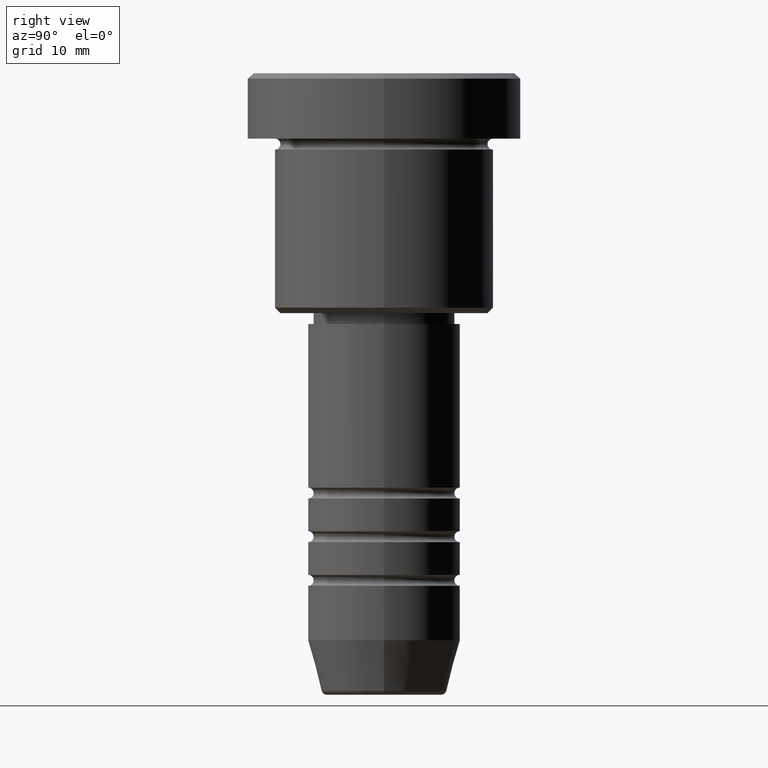
[diagram: clean part render]
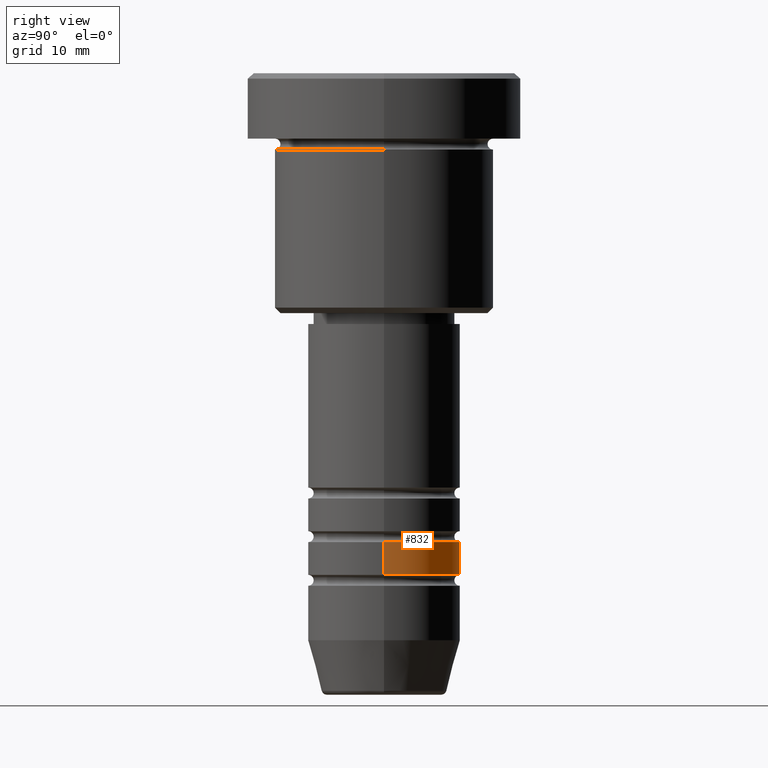
[diagram: same view with one face highlighted and labeled with its STEP entity id]
A machine part, right view. The second image highlights one B-rep face of the part: STEP entity #832.
In plain terms, the highlighted cylindrical surface (partial cylindrical patch) has radius 7 mm, axis along (-0, -0, 1).
Its self-contained STEP definition (entity closure, byte-faithful):
#58 = DIRECTION ( 'NONE',  ( -0.000000000000000000, -0.000000000000000000, 1.000000000000000000 ) ) ;
#67 = CARTESIAN_POINT ( 'NONE',  ( -7.000000000000000000, 8.572527594031473190E-16, -42.99999999999989342 ) ) ;
#105 = EDGE_CURVE ( 'NONE', #943, #615, #325, .T. ) ;
#121 = EDGE_LOOP ( 'NONE', ( #228, #783, #512, #343 ) ) ;
#131 = DIRECTION ( 'NONE',  ( -0.000000000000000000, -0.000000000000000000, 1.000000000000000000 ) ) ;
#193 = VECTOR ( 'NONE', #628, 1000.000000000000000 ) ;
#215 = CIRCLE ( 'NONE', #468, 7.000000000000000000 ) ;
#228 = ORIENTED_EDGE ( 'NONE', *, *, #1126, .T. ) ;
#240 = EDGE_CURVE ( 'NONE', #503, #615, #215, .T. ) ;
#271 = AXIS2_PLACEMENT_3D ( 'NONE', #895, #58, #1146 ) ;
#279 = CARTESIAN_POINT ( 'NONE',  ( -7.000000000000000888, 8.572527594031474176E-16, -45.99999999999988631 ) ) ;
#301 = DIRECTION ( 'NONE',  ( 1.000000000000000000, 0.000000000000000000, 0.000000000000000000 ) ) ;
#324 = DIRECTION ( 'NONE',  ( -0.000000000000000000, -0.000000000000000000, 1.000000000000000000 ) ) ;
#325 = LINE ( 'NONE', #801, #193 ) ;
#332 = CARTESIAN_POINT ( 'NONE',  ( 7.000000000000000888, 0.000000000000000000, 0.000000000000000000 ) ) ;
#343 = ORIENTED_EDGE ( 'NONE', *, *, #836, .F. ) ;
#421 = FACE_OUTER_BOUND ( 'NONE', #121, .T. ) ;
#424 = LINE ( 'NONE', #332, #1084 ) ;
#468 = AXIS2_PLACEMENT_3D ( 'NONE', #773, #495, #693 ) ;
#495 = DIRECTION ( 'NONE',  ( -0.000000000000000000, -0.000000000000000000, 1.000000000000000000 ) ) ;
#503 = VERTEX_POINT ( 'NONE', #585 ) ;
#512 = ORIENTED_EDGE ( 'NONE', *, *, #240, .F. ) ;
#585 = CARTESIAN_POINT ( 'NONE',  ( 7.000000000000000000, 0.000000000000000000, -42.99999999999989342 ) ) ;
#615 = VERTEX_POINT ( 'NONE', #67 ) ;
#628 = DIRECTION ( 'NONE',  ( -0.000000000000000000, -0.000000000000000000, 1.000000000000000000 ) ) ;
#666 = CIRCLE ( 'NONE', #1020, 7.000000000000000888 ) ;
#674 = VERTEX_POINT ( 'NONE', #854 ) ;
#693 = DIRECTION ( 'NONE',  ( 1.000000000000000000, 0.000000000000000000, 0.000000000000000000 ) ) ;
#700 = CARTESIAN_POINT ( 'NONE',  ( 0.000000000000000000, 0.000000000000000000, -45.99999999999988631 ) ) ;
#773 = CARTESIAN_POINT ( 'NONE',  ( 0.000000000000000000, 0.000000000000000000, -42.99999999999989342 ) ) ;
#783 = ORIENTED_EDGE ( 'NONE', *, *, #105, .T. ) ;
#787 = CYLINDRICAL_SURFACE ( 'NONE', #271, 7.000000000000000888 ) ;
#801 = CARTESIAN_POINT ( 'NONE',  ( -7.000000000000000888, 8.572527594031474176E-16, 0.000000000000000000 ) ) ;
#832 = ADVANCED_FACE ( 'NONE', ( #421 ), #787, .T. ) ;
#836 = EDGE_CURVE ( 'NONE', #674, #503, #424, .T. ) ;
#854 = CARTESIAN_POINT ( 'NONE',  ( 7.000000000000000888, 0.000000000000000000, -45.99999999999988631 ) ) ;
#895 = CARTESIAN_POINT ( 'NONE',  ( 0.000000000000000000, 0.000000000000000000, 0.000000000000000000 ) ) ;
#943 = VERTEX_POINT ( 'NONE', #279 ) ;
#1020 = AXIS2_PLACEMENT_3D ( 'NONE', #700, #131, #301 ) ;
#1084 = VECTOR ( 'NONE', #324, 1000.000000000000000 ) ;
#1126 = EDGE_CURVE ( 'NONE', #674, #943, #666, .T. ) ;
#1146 = DIRECTION ( 'NONE',  ( 1.000000000000000000, 0.000000000000000000, 0.000000000000000000 ) ) ;